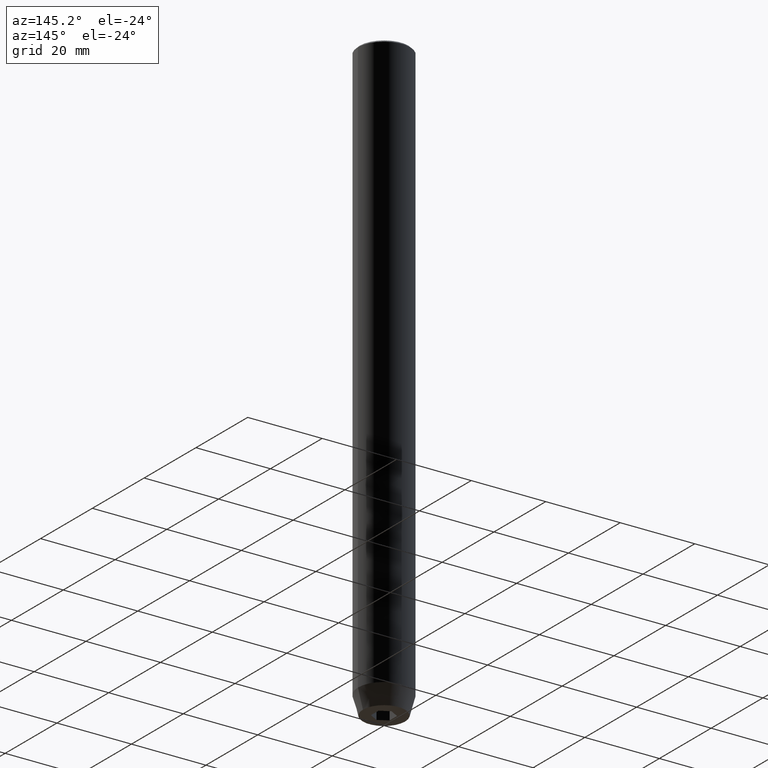
[diagram: clean part render]
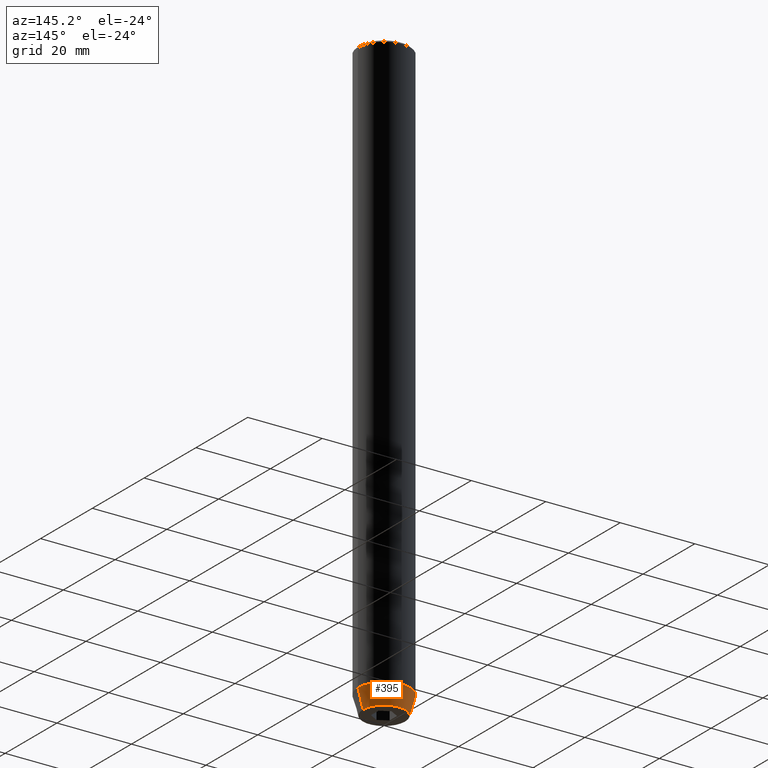
[diagram: same view with one face highlighted and labeled with its STEP entity id]
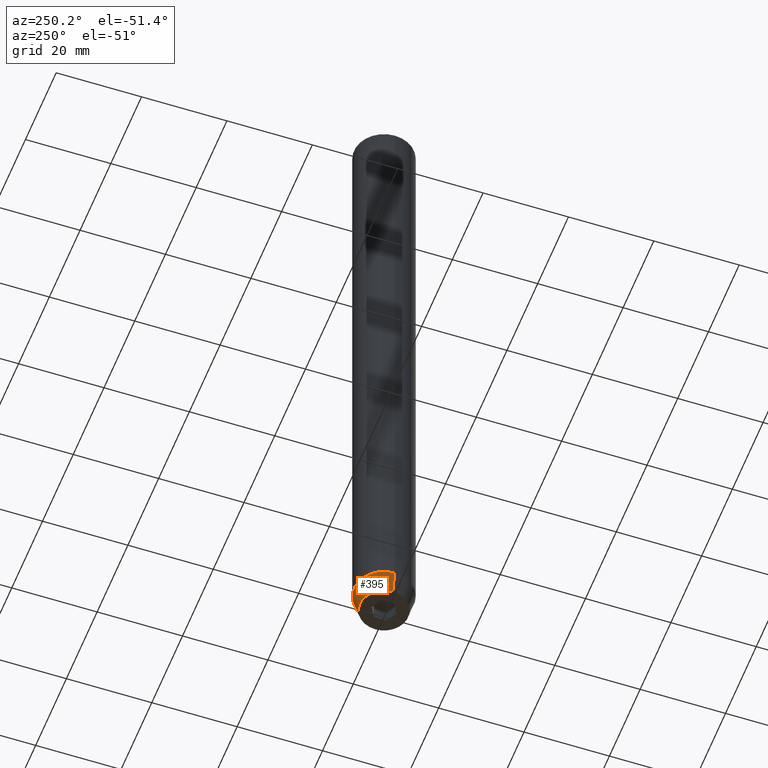
[diagram: same view with one face highlighted and labeled with its STEP entity id]
A machine part, auxiliary view. The second image highlights one B-rep face of the part: STEP entity #395.
A second angle (auxiliary view) of the same face is appended — the face is thin or edge-on in the first view.
In plain terms, the highlighted conical surface has half-angle 15 deg.
Its self-contained STEP definition (entity closure, byte-faithful):
#29 = CIRCLE ( 'NONE', #176, 7.000000000000000000 ) ;
#58 = DIRECTION ( 'NONE',  ( -0.000000000000000000, -0.000000000000000000, 1.000000000000000000 ) ) ;
#61 = EDGE_CURVE ( 'NONE', #531, #194, #309, .T. ) ;
#77 = ORIENTED_EDGE ( 'NONE', *, *, #61, .T. ) ;
#81 = DIRECTION ( 'NONE',  ( -0.000000000000000000, -0.000000000000000000, 1.000000000000000000 ) ) ;
#100 = DIRECTION ( 'NONE',  ( -0.000000000000000000, -0.000000000000000000, 1.000000000000000000 ) ) ;
#126 = VECTOR ( 'NONE', #508, 1000.000000000000114 ) ;
#148 = AXIS2_PLACEMENT_3D ( 'NONE', #331, #58, #560 ) ;
#159 = ORIENTED_EDGE ( 'NONE', *, *, #294, .F. ) ;
#162 = CARTESIAN_POINT ( 'NONE',  ( 5.660254037844375752, 0.000000000000000000, -160.0000000000000000 ) ) ;
#176 = AXIS2_PLACEMENT_3D ( 'NONE', #455, #81, #541 ) ;
#194 = VERTEX_POINT ( 'NONE', #248 ) ;
#196 = ORIENTED_EDGE ( 'NONE', *, *, #389, .F. ) ;
#201 = FACE_OUTER_BOUND ( 'NONE', #228, .T. ) ;
#211 = CONICAL_SURFACE ( 'NONE', #148, 7.000000000000000000, 0.2617993877991497964 ) ;
#228 = EDGE_LOOP ( 'NONE', ( #401, #77, #159, #196 ) ) ;
#229 = CIRCLE ( 'NONE', #556, 5.660254037844375752 ) ;
#248 = CARTESIAN_POINT ( 'NONE',  ( -7.000000000000000000, 8.572527594031473190E-16, -154.9999999999999716 ) ) ;
#294 = EDGE_CURVE ( 'NONE', #584, #194, #29, .T. ) ;
#309 = LINE ( 'NONE', #352, #469 ) ;
#315 = CARTESIAN_POINT ( 'NONE',  ( 7.000000000000000000, 0.000000000000000000, -154.9999999999999716 ) ) ;
#325 = DIRECTION ( 'NONE',  ( 1.000000000000000000, 0.000000000000000000, 0.000000000000000000 ) ) ;
#331 = CARTESIAN_POINT ( 'NONE',  ( 0.000000000000000000, 0.000000000000000000, -154.9999999999999716 ) ) ;
#351 = CARTESIAN_POINT ( 'NONE',  ( 7.000000000000000000, 0.000000000000000000, -154.9999999999999716 ) ) ;
#352 = CARTESIAN_POINT ( 'NONE',  ( -7.000000000000000000, 8.572527594031473190E-16, -154.9999999999999716 ) ) ;
#389 = EDGE_CURVE ( 'NONE', #522, #584, #537, .T. ) ;
#395 = ADVANCED_FACE ( 'NONE', ( #201 ), #211, .T. ) ;
#397 = CARTESIAN_POINT ( 'NONE',  ( -5.660254037844375752, 7.752169791919234826E-16, -160.0000000000000000 ) ) ;
#399 = DIRECTION ( 'NONE',  ( -0.2588190451025210725, 3.169619151431769255E-17, 0.9659258262890680902 ) ) ;
#401 = ORIENTED_EDGE ( 'NONE', *, *, #413, .T. ) ;
#413 = EDGE_CURVE ( 'NONE', #522, #531, #229, .T. ) ;
#427 = CARTESIAN_POINT ( 'NONE',  ( 0.000000000000000000, 0.000000000000000000, -160.0000000000000000 ) ) ;
#455 = CARTESIAN_POINT ( 'NONE',  ( 0.000000000000000000, 0.000000000000000000, -154.9999999999999716 ) ) ;
#469 = VECTOR ( 'NONE', #399, 1000.000000000000114 ) ;
#508 = DIRECTION ( 'NONE',  ( 0.2588190451025210725, 0.000000000000000000, 0.9659258262890680902 ) ) ;
#522 = VERTEX_POINT ( 'NONE', #162 ) ;
#531 = VERTEX_POINT ( 'NONE', #397 ) ;
#537 = LINE ( 'NONE', #315, #126 ) ;
#541 = DIRECTION ( 'NONE',  ( 1.000000000000000000, 0.000000000000000000, 0.000000000000000000 ) ) ;
#556 = AXIS2_PLACEMENT_3D ( 'NONE', #427, #100, #325 ) ;
#560 = DIRECTION ( 'NONE',  ( 1.000000000000000000, 0.000000000000000000, 0.000000000000000000 ) ) ;
#584 = VERTEX_POINT ( 'NONE', #351 ) ;